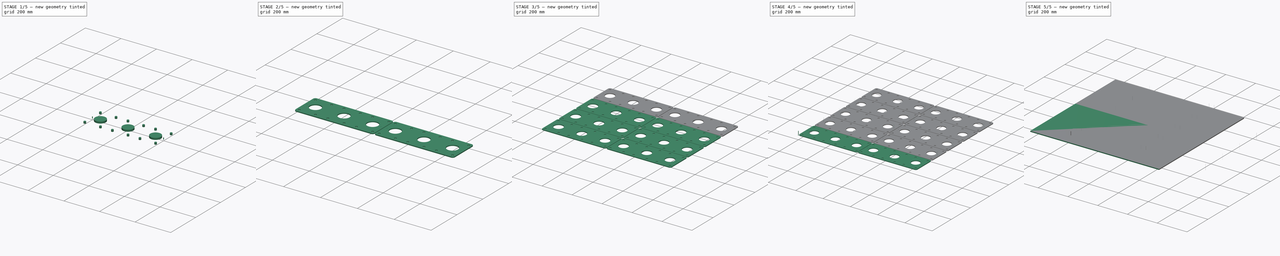
[diagram: build sequence overview — one tinted view per stage of 5, left to right]
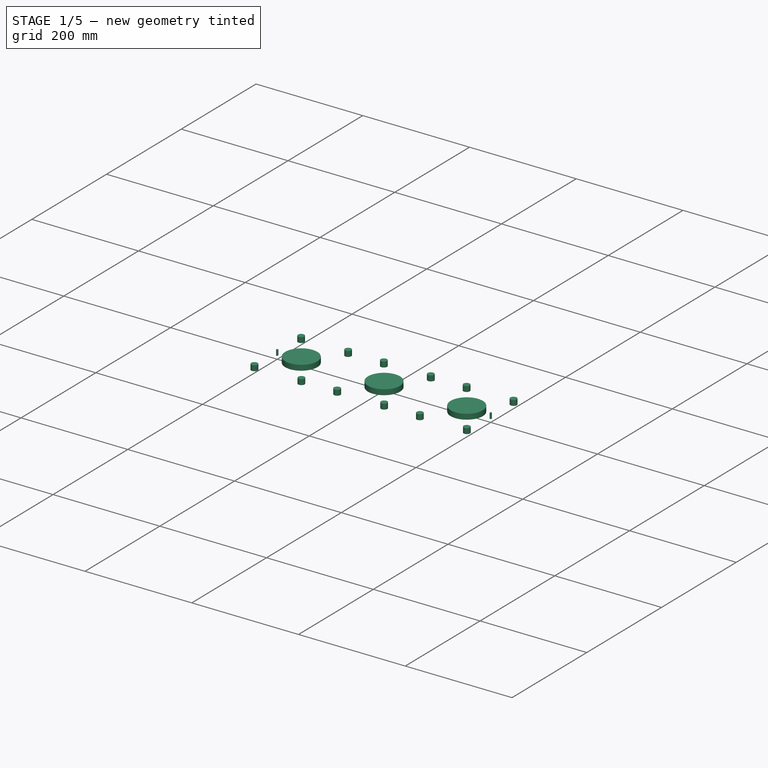
[diagram: stage 1 of 5 — iso view after this stage's code; geometry added in this stage tinted green]
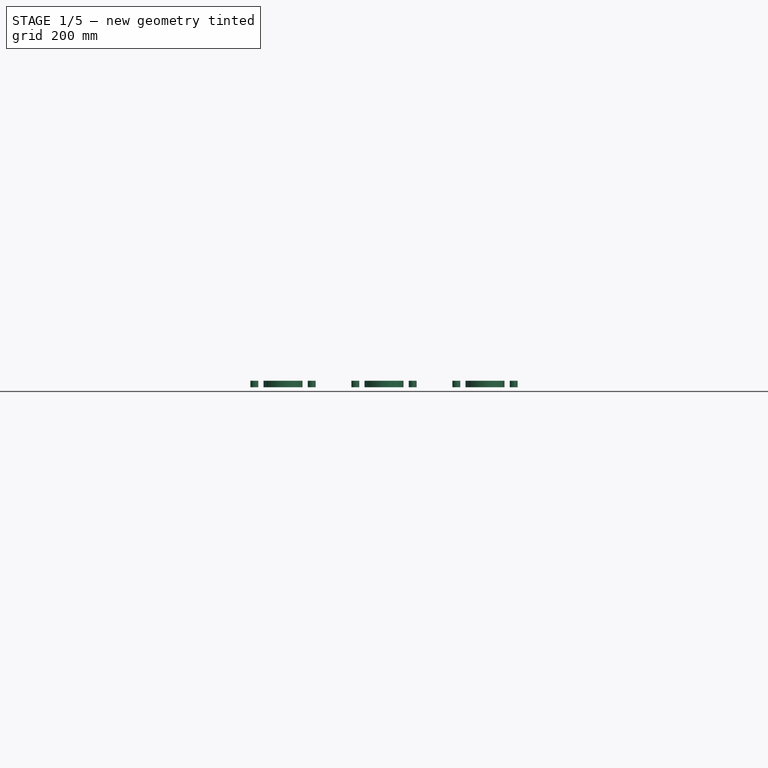
[diagram: stage 1 of 5 — front view after this stage's code; geometry added in this stage tinted green]
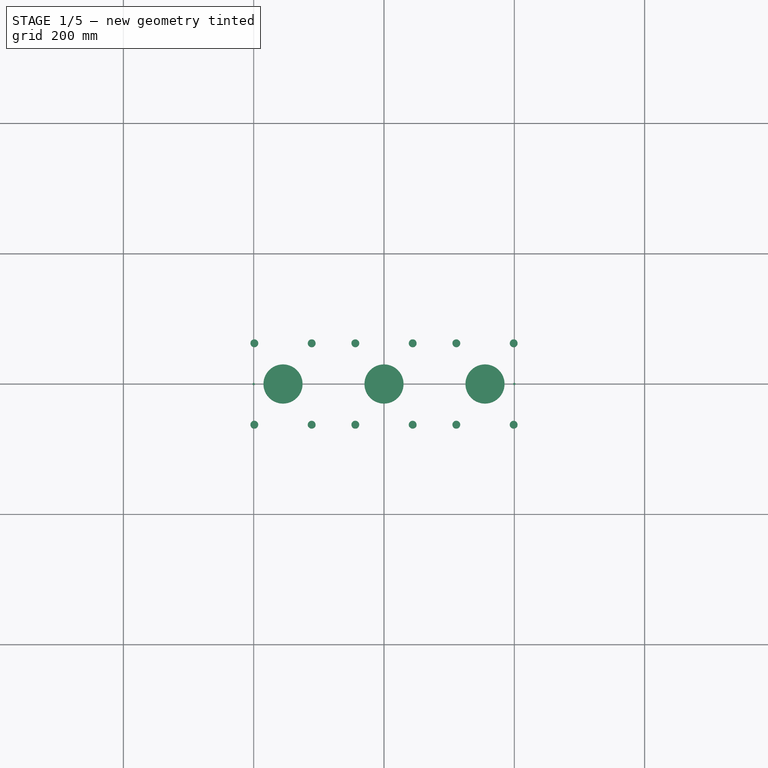
[diagram: stage 1 of 5 — top view after this stage's code; geometry added in this stage tinted green]
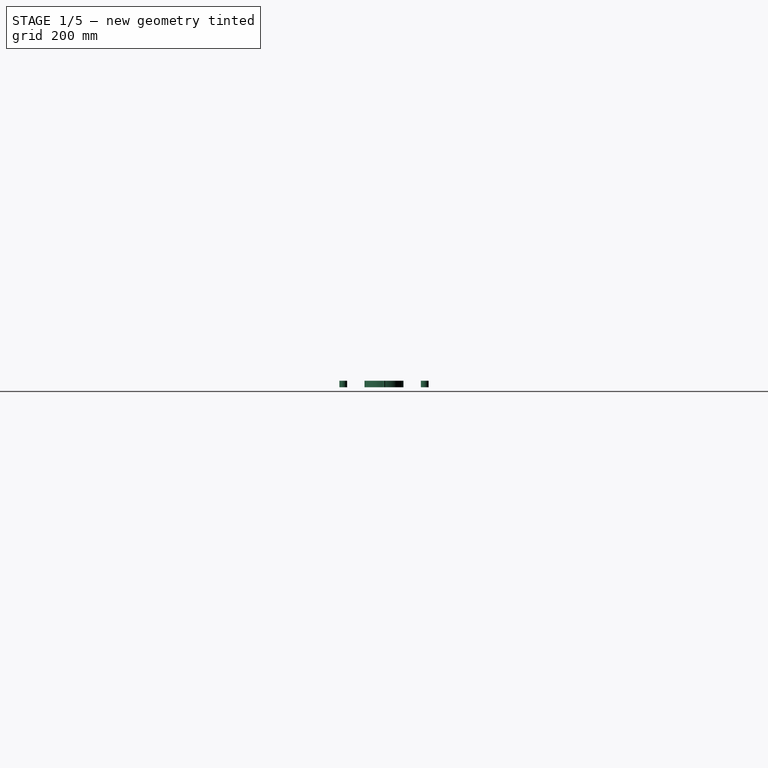
[diagram: stage 1 of 5 — right view after this stage's code; geometry added in this stage tinted green]
FCSTD DOCUMENT  (FreeCAD 0.22R37100 (Git))
Label: stillage_compressor
License: All rights reserved
LicenseURL: http://en.wikipedia.org/wiki/All_rights_reserved
objects: Part::FeaturePython×42, Path::FeaturePython×12, App::DocumentObjectGroup×10, Part::Cylinder×4, App::FeaturePython×3, Part::MultiFuse×2, Measure::MeasureLength×2, Path::FeatureCompound×2, Part::Part2DObjectPython×1, Sketcher::SketchObject×1, PartDesign::SubShapeBinder×1, PartDesign::Pad×1, PartDesign::Boolean×1, PartDesign::Body×1, Measure::MeasureDistance×1
note: 57 computed .brp shape members not serialized (recipe doc carries the construction recipe); baked Part::Feature solids carry a one-line shape summary decoded from their .brp

FEATURE [Part::Cylinder] Cylinder
  Angle = 360
  AttacherType = Attacher::AttachEngine3D
  FirstAngle = 0
  Height = 10
  Radius = 30
  SecondAngle = 0
FEATURE [Part::FeaturePython] LinearArray  # WARN: FeaturePython — macro-defined, semantics opaque (R4)
  Alignment = 0
  CellStart = A1
  Count = 3
  Dir = (1,0,0)
  DirIsDriven = true
  DistributionLaw = 0
  DrivenProperty = 1
  EndInclusive = true
  ExposePlacement = false
  GeneratorMode = 0
  MarkerShape = 1
  MarkerSize = 0
  NumElements = 3
  OrientMode = 1
  Placement = pos=(-155,0,0) rot=(0,0,1;0rad)
  Point = (0,0,0)
  PointIsDriven = true
  Reverse = false
  SpanEnd = 310
  SpanStart = 0
  Step = 155
  Type = lattice2LinearArray.LinearArray
  VSGVersion = 1
  Values = 0.0 | 155.0 | 310.0
  ValuesSource = 2
  isLattice = 1
  expr: .Placement.Base.x = -SpanEnd / 2
FEATURE [Part::FeaturePython] Populate  label="Populate LinearArray with Cylinder"  # WARN: FeaturePython — macro-defined, semantics opaque (R4)
  Copying = 0
  ExposePlacement = false
  MarkerShape = 1
  MarkerSize = 0
  NumElements = 0
  Object = -> Cylinder
  OutputCompounding = 1
  PlacementsTo = -> LinearArray
  Referencing = 0
  Type = lattice2PopulateCopies.LatticePopulateCopies
  isLattice = 0
FEATURE [Part::FeaturePython] Placment  # WARN: FeaturePython — macro-defined, semantics opaque (R4)
  AttacherType = Attacher::AttachEngine3D
  ExposePlacement = true
  MarkerShape = 1
  MarkerSize = 20
  NumElements = 1
  Placement = pos=(44,62.5,0) rot=(0,0,1;0rad)
  Type = lattice2AttachablePlacement.AttachablePlacement
  isLattice = 1
FEATURE [Part::FeaturePython] Mirror  label="Mirror of Placment"  # WARN: FeaturePython — macro-defined, semantics opaque (R4)
  ExposePlacement = false
  FlipX = true
  FlipY = false
  FlipZ = false
  MarkerShape = 1
  MarkerSize = 20
  NumElements = 1
  Object = -> Placment
  ObjectTraversal = 0
  Type = lattice2Mirror.LatticeMirror
  isLattice = 1
FEATURE [Part::FeaturePython] Join  # WARN: FeaturePython — macro-defined, semantics opaque (R4)
  ExposePlacement = false
  Interleave = false
  Links = -> [Placment,Mirror]
  MarkerShape = 1
  MarkerSize = 0
  NumElements = 2
  Type = lattice2JoinArrays.JoinArrays
  isLattice = 1
FEATURE [Part::FeaturePython] Mirror001  label="Mirror001 of Join"  # WARN: FeaturePython — macro-defined, semantics opaque (R4)
  ExposePlacement = false
  FlipX = false
  FlipY = true
  FlipZ = false
  MarkerShape = 1
  MarkerSize = 0
  NumElements = 2
  Object = -> Join
  ObjectTraversal = 0
  Type = lattice2Mirror.LatticeMirror
  isLattice = 1
FEATURE [Part::FeaturePython] Join001  # WARN: FeaturePython — macro-defined, semantics opaque (R4)
  ExposePlacement = false
  Interleave = false
  Links = -> [Join,Mirror001]
  MarkerShape = 1
  MarkerSize = 0
  NumElements = 4
  Type = lattice2JoinArrays.JoinArrays
  isLattice = 1
FEATURE [Part::Cylinder] Cylinder001
  Angle = 360
  AttacherType = Attacher::AttachEngine3D
  FirstAngle = 0
  Height = 10
  Radius = 6
  SecondAngle = 0
FEATURE [Part::FeaturePython] Populate001  label="Populate LinearArray with Join001"  # WARN: FeaturePython — macro-defined, semantics opaque (R4)
  Copying = 0
  ExposePlacement = false
  MarkerShape = 1
  MarkerSize = 0
  NumElements = 12
  Object = -> Join001
  OutputCompounding = 0
  PlacementsTo = -> LinearArray
  Referencing = 0
  Type = lattice2PopulateCopies.LatticePopulateCopies
  isLattice = 1
FEATURE [Part::FeaturePython] Populate002  label="Populate Populate LinearArray with Join001 with Cylinder001"  # WARN: FeaturePython — macro-defined, semantics opaque (R4)
  Copying = 0
  ExposePlacement = false
  MarkerShape = 1
  MarkerSize = 0
  NumElements = 0
  Object = -> Cylinder001
  OutputCompounding = 1
  PlacementsTo = -> Populate001
  Referencing = 0
  Type = lattice2PopulateCopies.LatticePopulateCopies
  isLattice = 0
FEATURE [Part::Cylinder] Cylinder002
  Angle = 360
  AttacherType = Attacher::AttachEngine3D
  FirstAngle = 0
  Height = 10
  Radius = 1.7
  SecondAngle = 0
FEATURE [Part::FeaturePython] Placment001  # WARN: FeaturePython — macro-defined, semantics opaque (R4)
  AttacherType = Attacher::AttachEngine3D
  ExposePlacement = true
  MarkerShape = 1
  MarkerSize = 20
  NumElements = 1
  Placement = pos=(200,0,0) rot=(0,0,1;0rad)
  Type = lattice2AttachablePlacement.AttachablePlacement
  isLattice = 1
FEATURE [Part::FeaturePython] Mirror002  label="Mirror002 of Placment001"  # WARN: FeaturePython — macro-defined, semantics opaque (R4)
  ExposePlacement = false
  FlipX = true
  FlipY = false
  FlipZ = false
  MarkerShape = 1
  MarkerSize = 20
  NumElements = 1
  Object = -> Placment001
  ObjectTraversal = 0
  Type = lattice2Mirror.LatticeMirror
  isLattice = 1
FEATURE [Part::FeaturePython] Join002  label="fix_placements"  # WARN: FeaturePython — macro-defined, semantics opaque (R4)
  ExposePlacement = false
  Interleave = false
  Links = -> [Placment001,Mirror002]
  MarkerShape = 1
  MarkerSize = 0
  NumElements = 2
  Type = lattice2JoinArrays.JoinArrays
  isLattice = 1
FEATURE [Part::FeaturePython] Populate003  label="Populate fix_placements with Cylinder002"  # WARN: FeaturePython — macro-defined, semantics opaque (R4)
  Copying = 0
  ExposePlacement = false
  MarkerShape = 1
  MarkerSize = 0
  NumElements = 0
  Object = -> Cylinder002
  OutputCompounding = 1
  PlacementsTo = -> Join002
  Referencing = 0
  Type = lattice2PopulateCopies.LatticePopulateCopies
  isLattice = 0
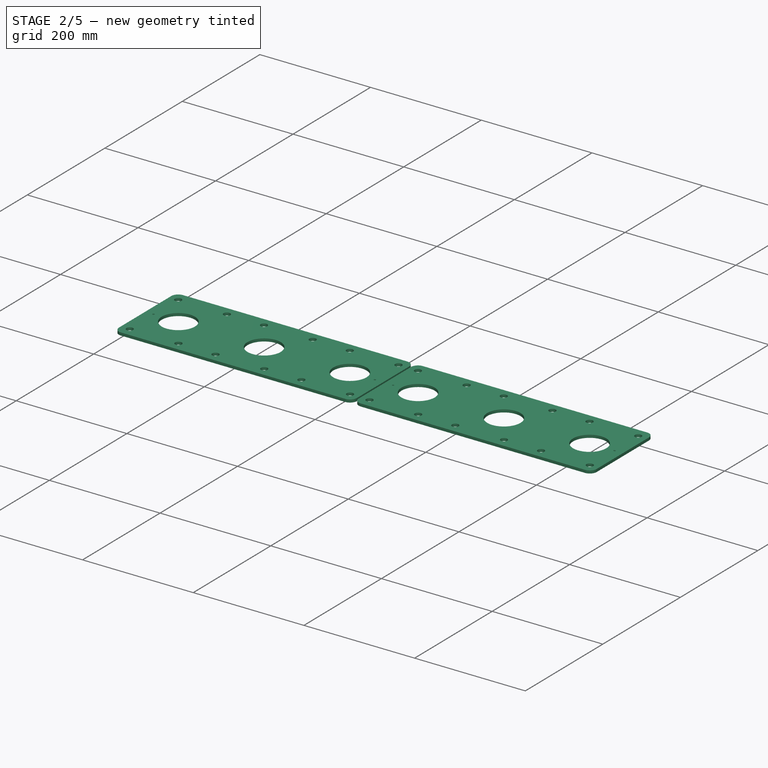
[diagram: stage 2 of 5 — iso view after this stage's code; geometry added in this stage tinted green]
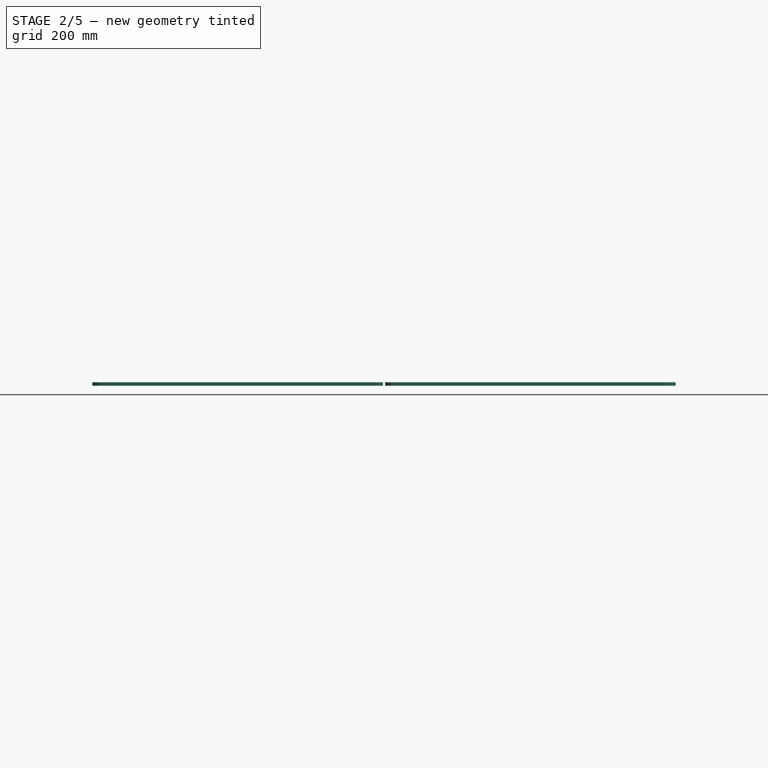
[diagram: stage 2 of 5 — front view after this stage's code; geometry added in this stage tinted green]
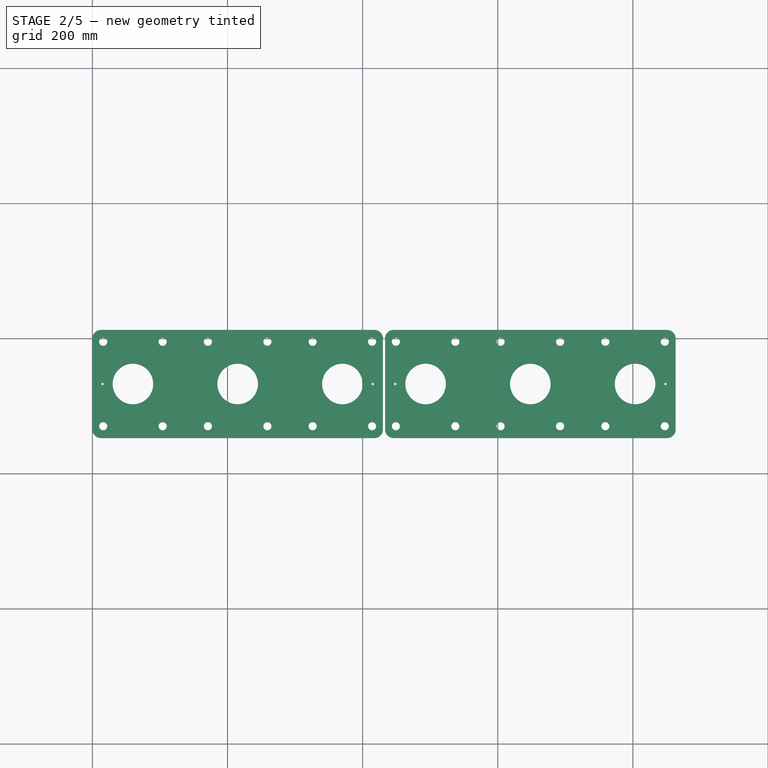
[diagram: stage 2 of 5 — top view after this stage's code; geometry added in this stage tinted green]
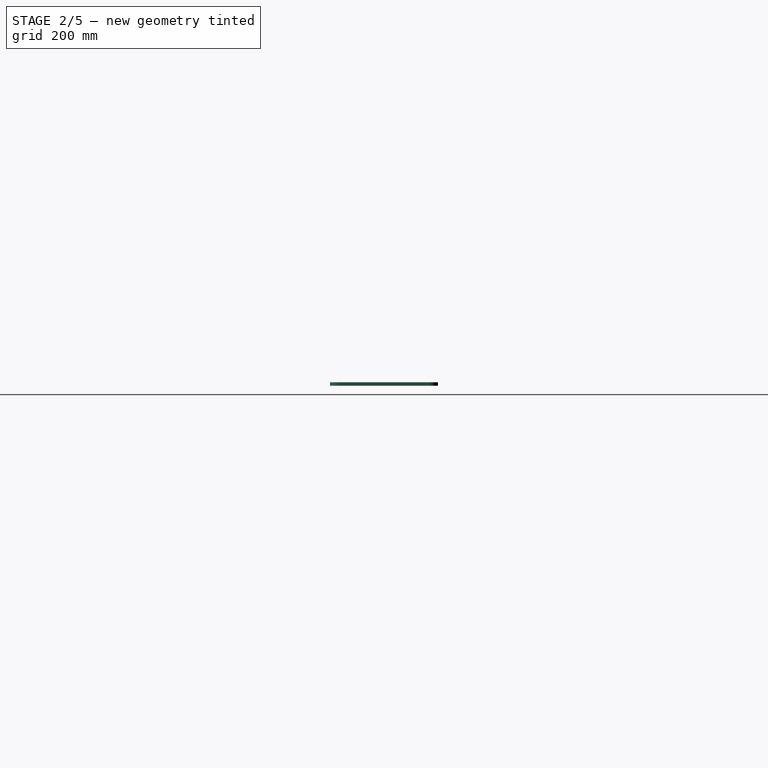
[diagram: stage 2 of 5 — right view after this stage's code; geometry added in this stage tinted green]
FEATURE [Part::Part2DObjectPython] Rectangle  # Draft 2D object (typed FeaturePython)
  Area = 0
  ChamferSize = 0
  Columns = 1
  FilletRadius = 0
  Height = 900
  Length = 870
  MakeFace = false
  Rows = 1
FEATURE [Sketcher::SketchObject] Sketch002
  FullyConstrained = true
  sketch-geometry (10):
    g0: LineSegment StartX=-202.5 StartY=-80 StartZ=0 EndX=202.5 EndY=-80 EndZ=0
    g1: LineSegment StartX=215 StartY=-67.5 StartZ=0 EndX=215 EndY=67.5 EndZ=0
    g2: LineSegment StartX=202.5 StartY=80 StartZ=0 EndX=-202.5 EndY=80 EndZ=0
    g3: LineSegment StartX=-215 StartY=67.5 StartZ=0 EndX=-215 EndY=-67.5 EndZ=0
    g4: ArcOfCircle CenterX=-202.5 CenterY=-67.5 CenterZ=0 NormalX=0 NormalY=0 NormalZ=1 AngleXU=0 Radius=12.5 StartAngle=3.14159 EndAngle=4.71239
    g5: ArcOfCircle CenterX=202.5 CenterY=-67.5 CenterZ=0 NormalX=0 NormalY=0 NormalZ=1 AngleXU=0 Radius=12.5 StartAngle=4.71239 EndAngle=6.28319
    g6: ArcOfCircle CenterX=202.5 CenterY=67.5 CenterZ=0 NormalX=0 NormalY=0 NormalZ=1 AngleXU=0 Radius=12.5 StartAngle=-1.3367e-12 EndAngle=1.5708
    g7: ArcOfCircle CenterX=-202.5 CenterY=67.5 CenterZ=0 NormalX=0 NormalY=0 NormalZ=1 AngleXU=0 Radius=12.5 StartAngle=1.5708 EndAngle=3.14159
    g8: GeomPoint X=-215 Y=-80 Z=0
    g9: GeomPoint X=215 Y=80 Z=0
  constraints (23):
    c: Tangent(g0,g4) = -1.5708
    c: Tangent(g0,g5) = -1.5708
    c: Tangent(g1,g5) = -1.5708
    c: Tangent(g1,g6) = -1.5708
    c: Tangent(g2,g6) = -1.5708
    c: Tangent(g2,g7) = -1.5708
    c: Tangent(g3,g7) = -1.5708
    c: Tangent(g3,g4) = -1.5708
    c: Horizontal(g0)
    c: Horizontal(g2)
    c: Vertical(g1)
    c: Vertical(g3)
    c: Equal(g4,g5)
    c: Equal(g5,g6)
    c: Equal(g6,g7)
    c: PointOnObject(g8,g0)
    c: PointOnObject(g8,g3)
    c: PointOnObject(g9,g1)
    c: PointOnObject(g9,g2)
    c: Symmetric(g8,g9,g-1)
    c: DistanceX(g8,g9) = 430
    c: DistanceY(g8,g9) = 160
    c: Radius(g6) = 12.5
FEATURE [PartDesign::SubShapeBinder] Binder
  BindCopyOnChange = 0
  BindMode = 0
  ClaimChildren = false
  Context = -> Body001 [Binder.]
  Fuse = false
  MakeFace = true
  OffsetFill = false
  OffsetIntersection = false
  OffsetJoinType = 0
  OffsetOpenResult = false
  PartialLoad = false
  Relative = false
  Support = -> [Sketch002]
  _Version = 2
FEATURE [PartDesign::Pad] Pad001
  Direction = (0,0,1)
  Length = 5
  Length2 = 10
  Profile = -> Binder
  Suppressed = false
  Type = 0
FEATURE [Part::MultiFuse] Fusion
  Shapes = -> [Populate,Populate002,Populate003]
FEATURE [PartDesign::Boolean] Boolean
  BaseFeature = -> Pad001
  Group = -> [Fusion]
  Refine = true
  Suppressed = false
  Type = 1
  UsePlacement = true
FEATURE [Part::FeaturePython] Clone008  label="Model-Body009"  # Draft clone (typed FeaturePython)
  AttacherType = Attacher::AttachEngine3D
  Fuse = false
  Objects = -> [Body001]
  PathResource = Model
  Placement = pos=(215,732.8,0) rot=(0,0,1;3.14159rad)
  Scale = (1,1,1)
FEATURE [Part::FeaturePython] Clone009  label="Model-Body010"  # Draft clone (typed FeaturePython)
  AttacherType = Attacher::AttachEngine3D
  Fuse = false
  Objects = -> [Body001]
  PathResource = Model
  Placement = pos=(648.2,732.8,0) rot=(0,0,1;0rad)
  Scale = (1,1,1)
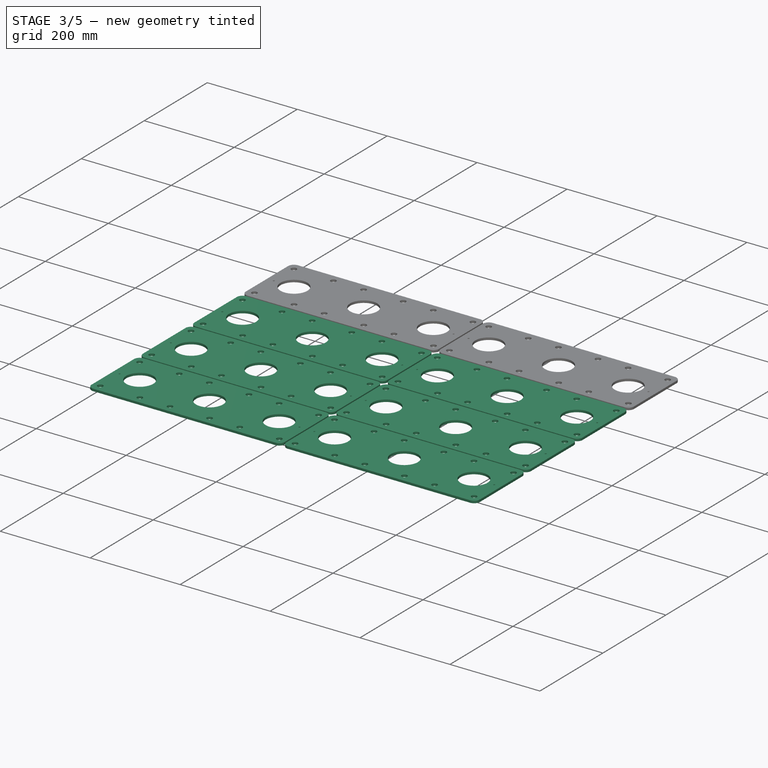
[diagram: stage 3 of 5 — iso view after this stage's code; geometry added in this stage tinted green]
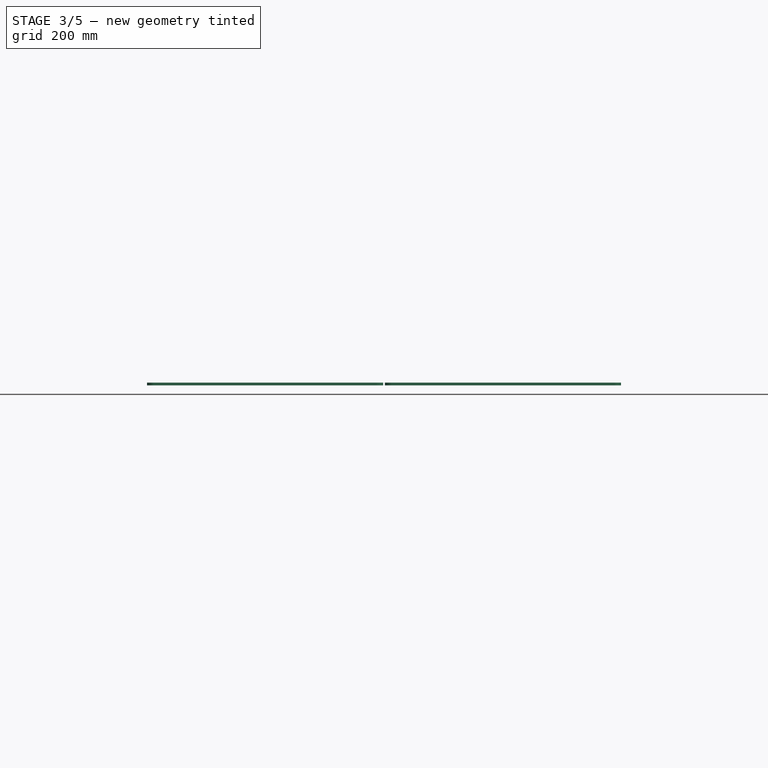
[diagram: stage 3 of 5 — front view after this stage's code; geometry added in this stage tinted green]
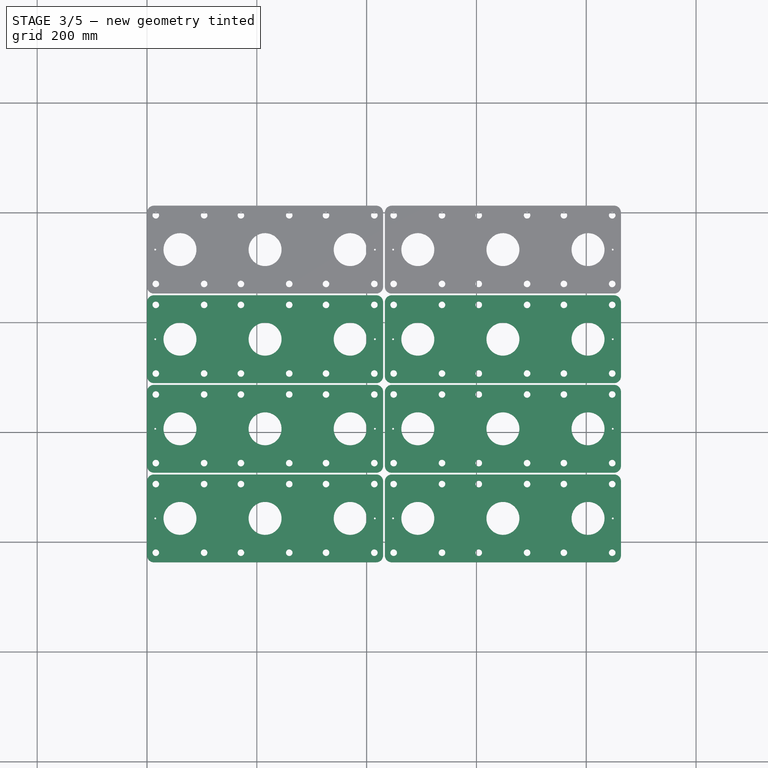
[diagram: stage 3 of 5 — top view after this stage's code; geometry added in this stage tinted green]
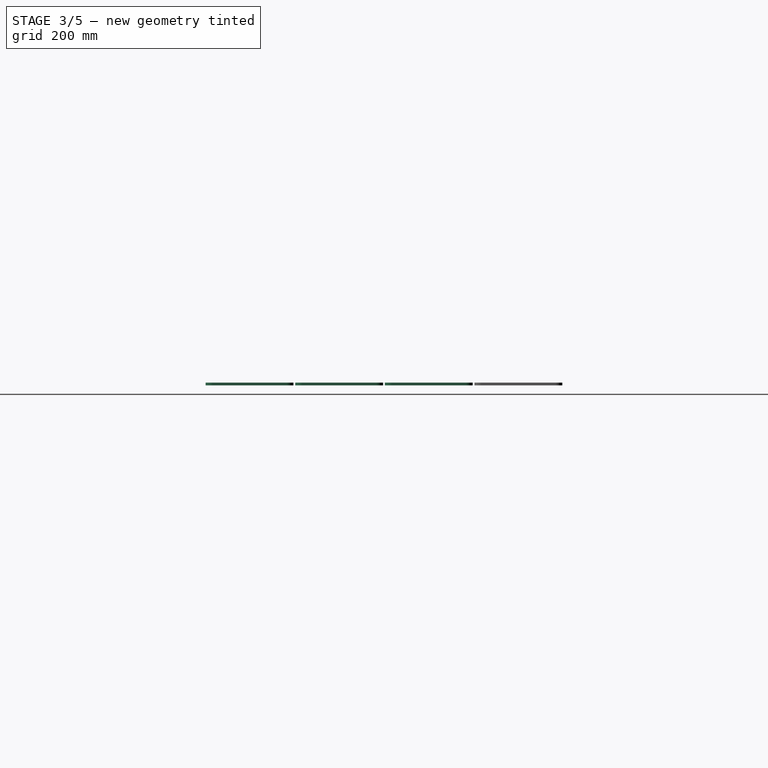
[diagram: stage 3 of 5 — right view after this stage's code; geometry added in this stage tinted green]
FEATURE [Part::FeaturePython] Clone002  label="Model-Body003"  # Draft clone (typed FeaturePython)
  AttacherType = Attacher::AttachEngine3D
  Fuse = false
  Objects = -> [Body001]
  PathResource = Model
  Placement = pos=(215,243.2,0) rot=(0,0,1;3.14159rad)
  Scale = (1,1,1)
FEATURE [Path::FeaturePython] Custom  # Path/CAM operation (typed FeaturePython)
  Active = true
  CoolantMode = 0
  CycleTime = Cycletime Error
  OpStockZMax = 6
  OpStockZMin = 0
  OpToolDiameter = 3.175
  Source = 0
  StartDepth = 6
  ToolController = -> __175mm_Endmill001
FEATURE [Path::FeaturePython] Custom001  # Path/CAM operation (typed FeaturePython)
  Active = true
  CoolantMode = 0
  CycleTime = Cycletime Error
  OpStockZMax = 6
  OpStockZMin = 0
  OpToolDiameter = 3.175
  Source = 0
  StartDepth = 6
  ToolController = -> __175mm_Endmill001
FEATURE [Part::FeaturePython] Clone003  label="Model-Body004"  # Draft clone (typed FeaturePython)
  AttacherType = Attacher::AttachEngine3D
  Fuse = false
  Objects = -> [Body001]
  PathResource = Model
  Placement = pos=(648.2,243.2,0) rot=(0,0,1;0rad)
  Scale = (1,1,1)
FEATURE [Measure::MeasureLength] Length
  Elements = -> [Rectangle]
  Length = 900
FEATURE [Measure::MeasureLength] Length001
  Elements = -> [Rectangle]
  Length = 870
FEATURE [Part::FeaturePython] Placment005  # WARN: FeaturePython — macro-defined, semantics opaque (R4)
  AttacherType = Attacher::AttachEngine3D
  AttachmentSupport = -> [Clone003]
  ExposePlacement = true
  MapMode = 2
  MarkerShape = 1
  MarkerSize = 20
  NumElements = 1
  Placement = pos=(648.2,243.2,0) rot=(0,0,1;0rad)
  Type = lattice2AttachablePlacement.AttachablePlacement
  isLattice = 1
FEATURE [Measure::MeasureDistance] Distance
  Distance = 160
  Element1 = -> Clone001 [Edge37]
  Element2 = -> Clone001 [Edge4]
  Position1 = (445.7,-8.53e-14,5)
  Position2 = (445.7,160,5)
FEATURE [App::DocumentObjectGroup] Measurements
  Group = -> [Length,Length001,Distance]
FEATURE [Part::FeaturePython] Clone004  label="Model-Body005"  # Draft clone (typed FeaturePython)
  AttacherType = Attacher::AttachEngine3D
  Fuse = false
  Objects = -> [Body001]
  PathResource = Model
  Placement = pos=(215,406.4,0) rot=(0,0,1;3.14159rad)
  Scale = (1,1,1)
FEATURE [Part::FeaturePython] Clone005  label="Model-Body006"  # Draft clone (typed FeaturePython)
  AttacherType = Attacher::AttachEngine3D
  Fuse = false
  Objects = -> [Body001]
  PathResource = Model
  Placement = pos=(648.2,406.4,0) rot=(0,0,1;0rad)
  Scale = (1,1,1)
FEATURE [Part::FeaturePython] Clone006  label="Model-Body007"  # Draft clone (typed FeaturePython)
  AttacherType = Attacher::AttachEngine3D
  Fuse = false
  Objects = -> [Body001]
  PathResource = Model
  Placement = pos=(215,569.6,0) rot=(0,0,1;3.14159rad)
  Scale = (1,1,1)
FEATURE [Part::FeaturePython] Clone007  label="Model-Body008"  # Draft clone (typed FeaturePython)
  AttacherType = Attacher::AttachEngine3D
  Fuse = false
  Objects = -> [Body001]
  PathResource = Model
  Placement = pos=(648.2,569.6,0) rot=(0,0,1;0rad)
  Scale = (1,1,1)
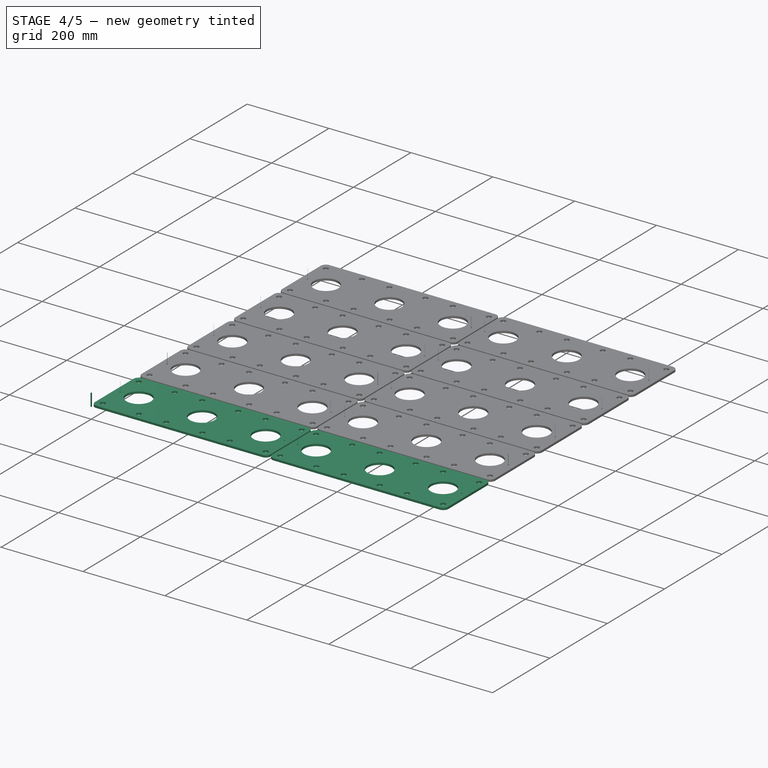
[diagram: stage 4 of 5 — iso view after this stage's code; geometry added in this stage tinted green]
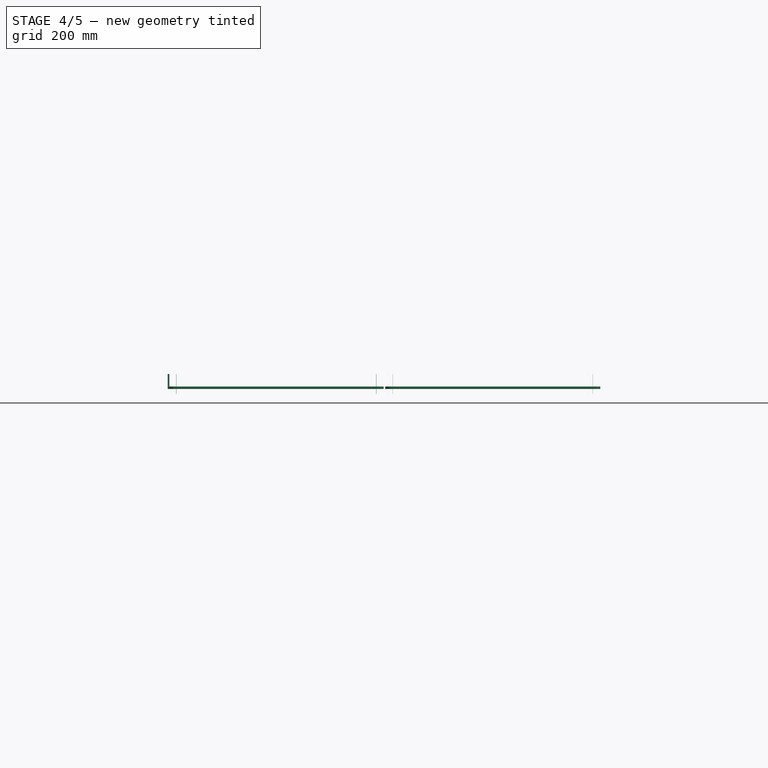
[diagram: stage 4 of 5 — front view after this stage's code; geometry added in this stage tinted green]
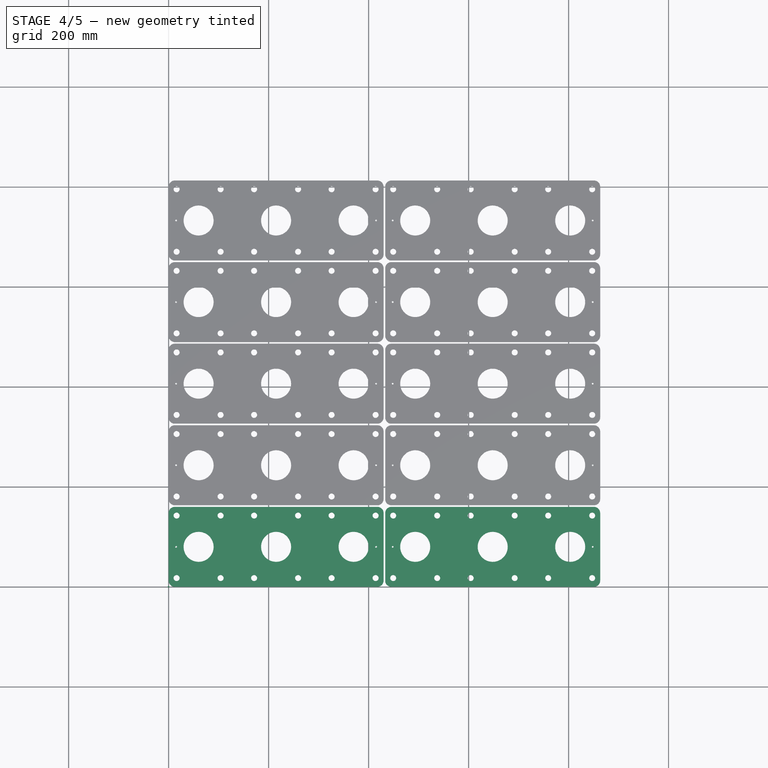
[diagram: stage 4 of 5 — top view after this stage's code; geometry added in this stage tinted green]
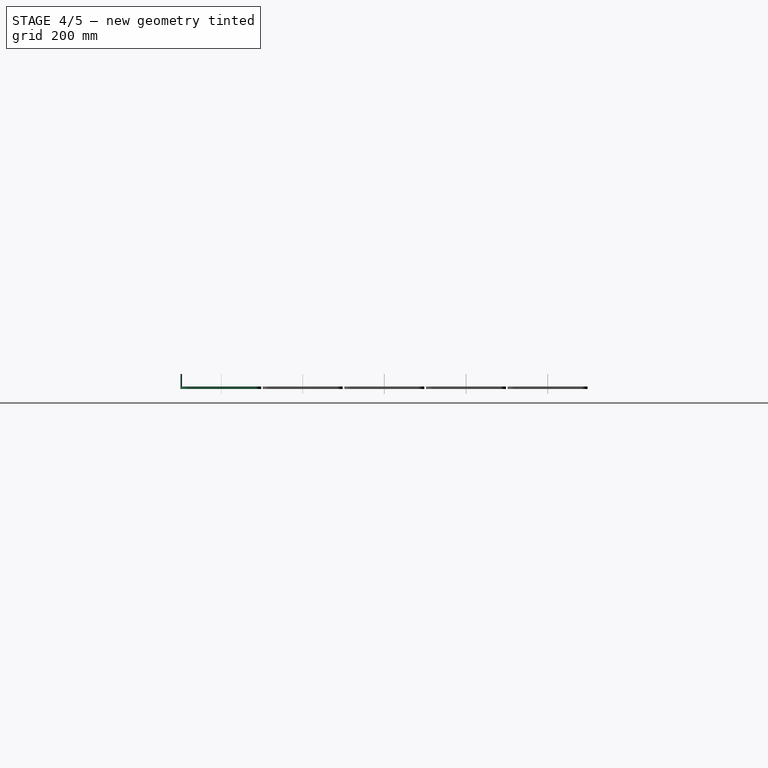
[diagram: stage 4 of 5 — right view after this stage's code; geometry added in this stage tinted green]
FEATURE [PartDesign::Body] Body001
  Group = -> [Binder,Pad001,Boolean]
  Origin = -> Origin001
  Tip = -> Boolean
FEATURE [App::FeaturePython] SetupSheet  # Path/CAM operation (typed FeaturePython)
  ClearanceHeightExpression = OpStockZMax+SetupSheet.ClearanceHeightOffset
  ClearanceHeightOffset = 15
  CoolantMode = 0
  CoolantModes = None | Flood | Mist
  FinalDepthExpression = OpFinalDepth
  HorizRapid = 0
  ProfileDirection = 1
  ProfileprocessCircles = true
  ProfileprocessHoles = true
  ProfileprocessPerimeter = true
  SafeHeightExpression = OpStockZMax+SetupSheet.SafeHeightOffset
  SafeHeightOffset = 3
  StartDepthExpression = OpStartDepth
  StepDownExpression = OpToolDiameter
  VertRapid = 0
FEATURE [Part::FeaturePython] Clone  label="Model-Body001"  # Draft clone (typed FeaturePython)
  AttacherType = Attacher::AttachEngine3D
  Fuse = false
  Objects = -> [Body001]
  PathResource = Model
  Placement = pos=(215,80,0) rot=(0,0,1;3.14159rad)
  Scale = (1,1,1)
FEATURE [Part::FeaturePython] ToolBit  label="3.175mm Endmill"  # Path/CAM toolbit (typed FeaturePython)
  BitPropertyNames = Chipload | CuttingEdgeHeight | Diameter | Flutes | Length | Material | ShankDiameter | SpindleDirection
  BitShape = <path>
  Chipload = 0
  CuttingEdgeHeight = 30
  Diameter = 3.175
  Flutes = 0
  Length = 10
  Material = 0
  ShankDiameter = 3
  ShapeName = endmill
  SpindleDirection = 0
FEATURE [Path::FeaturePython] __175mm_Endmill  label="3.175mm Endmill001"  # Path/CAM operation (typed FeaturePython)
  HorizFeed = 51.6667
  HorizRapid = 0
  SpindleDir = 0
  SpindleSpeed = 18000
  Tool = -> ToolBit
  ToolNumber = 1
  VertFeed = 35
  VertRapid = 0
  expr: HorizRapid = SetupSheet.HorizRapid
  expr: VertRapid = SetupSheet.VertRapid
FEATURE [App::DocumentObjectGroup] Tools
  Group = -> [__175mm_Endmill]
FEATURE [Part::Cylinder] Cylinder003
  Angle = 360
  AttacherType = Attacher::AttachEngine3D
  FirstAngle = 0
  Height = 40
  Placement = pos=(0,0,-10) rot=(0,0,1;0rad)
  Radius = 0.2
  SecondAngle = 0
FEATURE [Part::FeaturePython] Clone001  label="Model-Body002"  # Draft clone (typed FeaturePython)
  AttacherType = Attacher::AttachEngine3D
  Fuse = false
  Objects = -> [Body001]
  PathResource = Model
  Placement = pos=(648.2,80,0) rot=(0,0,1;3.14159rad)
  Scale = (1,1,1)
FEATURE [Path::FeaturePython] Profile  # Path/CAM operation (typed FeaturePython)
  Active = true
  AreaParams:
    Tolerance = 1e-07
    FitArcs = True
    Simplify = False
    CleanDistance = 0.0
    Accuracy = 0.01
    Unit = 1.0
    MinArcPoints = 4
    MaxArcPoints = 100
    ClipperScale = 10000000.0
    Fill = 0
    Coplanar = 0
    Reorient = True
    Outline = False
    Explode = False
    OpenMode = 0
    Deflection = 0.01
    SubjectFill = 0
    ClipFill = 0
    Offset = -1.5875
    ExtraPass = 0
    Stepover = 0.0
    LastStepover = 0.0
    JoinType = 0
    EndType = 0
    MiterLimit = 2.0
    RoundPrecision = 0.0
    PocketMode = 0
    ToolRadius = 1.0
    PocketExtraOffset = 0.0
    PocketStepover = 0.0
    PocketLastStepover = 0.0
    FromCenter = False
    Angle = 45.0
    AngleShift = 0.0
    Shift = 0.0
    Thicken = False
    SectionCount = -1
    Stepdown = 1.0
    SectionOffset = 0.0
    SectionTolerance = 1e-06
    SectionMode = 2
    Project = False
  Base = -> [Clone,Clone001,Clone002,Clone003,Clone004,Clone005,Clone006,Clone007,Clone008,Clone009]
  ClearanceHeight = 21
  CoolantMode = 0
  CycleTime = 00:08:03
  Direction = 1
  FinalDepth = 0
  HandleMultipleFeatures = 0
  JoinType = 0
  MiterLimit = 0.1
  OffsetExtra = 0
  OpFinalDepth = 0
  OpStartDepth = 6
  OpStockZMax = 6
  OpStockZMin = 0
  OpToolDiameter = 3.175
  PathParams = {'orientation': 1, 'feedrate': 51.666666666666664, 'feedrate_v': 35.0, 'verbose': True, 'resume_height': 9.0, 'retraction': 21.0, 'return_end': True, 'preamble': False, 'start': Vector (452.8938940543088, 792.8910097721513, 21.0)}
  SafeHeight = 9
  Side = 0
  SplitArcs = false
  StartDepth = 6
  StartPoint = (0,0,0)
  StepDown = 10
  ToolController = -> __175mm_Endmill
  UseComp = true
  UseStartPoint = false
  processCircles = true
  processHoles = true
  processPerimeter = false
  expr: ClearanceHeight = OpStockZMax + SetupSheet.ClearanceHeightOffset
  expr: FinalDepth = OpFinalDepth
  expr: SafeHeight = OpStockZMax + SetupSheet.SafeHeightOffset
  expr: StartDepth = OpStartDepth
FEATURE [Path::FeaturePython] Profile001  # Path/CAM operation (typed FeaturePython)
  Active = true
  AreaParams:
    Tolerance = 1e-07
    FitArcs = True
    Simplify = False
    CleanDistance = 0.0
    Accuracy = 0.01
    Unit = 1.0
    MinArcPoints = 4
    MaxArcPoints = 100
    ClipperScale = 10000000.0
    Fill = 0
    Coplanar = 0
    Reorient = True
    Outline = False
    Explode = False
    OpenMode = 0
    Deflection = 0.01
    SubjectFill = 0
    ClipFill = 0
    Offset = 1.5875
    ExtraPass = 0
    Stepover = 0.0
    LastStepover = 0.0
    JoinType = 0
    EndType = 0
    MiterLimit = 2.0
    RoundPrecision = 0.0
    PocketMode = 0
    ToolRadius = 1.0
    PocketExtraOffset = 0.0
    PocketStepover = 0.0
    PocketLastStepover = 0.0
    FromCenter = False
    Angle = 45.0
    AngleShift = 0.0
    Shift = 0.0
    Thicken = False
    SectionCount = -1
    Stepdown = 1.0
    SectionOffset = 0.0
    SectionTolerance = 1e-06
    SectionMode = 2
    Project = False
  Base = -> [Clone,Clone001,Clone002,Clone003,Clone004,Clone005,Clone006,Clone007,Clone008,Clone009]
  ClearanceHeight = 21
  CoolantMode = 0
  CycleTime = 00:04:20
  Direction = 1
  FinalDepth = 0
  HandleMultipleFeatures = 0
  JoinType = 0
  MiterLimit = 0.1
  OffsetExtra = 0
  OpFinalDepth = 0
  OpStartDepth = 6
  OpStockZMax = 6
  OpStockZMin = 0
  OpToolDiameter = 3.175
  PathParams = {'orientation': 0, 'feedrate': 51.666666666666664, 'feedrate_v': 35.0, 'verbose': True, 'resume_height': 9.0, 'retraction': 21.0, 'return_end': True, 'preamble': False, 'start': Vector (445.63767500000006, 324.7862760000001, 21.0)}
  SafeHeight = 9
  Side = 0
  SplitArcs = false
  StartDepth = 6
  StartPoint = (0,0,0)
  StepDown = 10
  ToolController = -> __175mm_Endmill
  UseComp = true
  UseStartPoint = false
  processCircles = false
  processHoles = false
  processPerimeter = true
  expr: Base = <<Profile>>.Base
  expr: ClearanceHeight = OpStockZMax + SetupSheet.ClearanceHeightOffset
  expr: FinalDepth = OpFinalDepth
  expr: SafeHeight = OpStockZMax + SetupSheet.SafeHeightOffset
  expr: StartDepth = OpStartDepth
FEATURE [Part::FeaturePython] Placment006  # WARN: FeaturePython — macro-defined, semantics opaque (R4)
  AttacherType = Attacher::AttachEngine3D
  AttachmentSupport = -> [Clone004]
  ExposePlacement = true
  MapMode = 2
  MarkerShape = 1
  MarkerSize = 20
  NumElements = 1
  Placement = pos=(215,406.4,0) rot=(0,0,1;3.14159rad)
  Type = lattice2AttachablePlacement.AttachablePlacement
  isLattice = 1
FEATURE [Part::FeaturePython] Placment007  # WARN: FeaturePython — macro-defined, semantics opaque (R4)
  AttacherType = Attacher::AttachEngine3D
  AttachmentSupport = -> [Clone005]
  ExposePlacement = true
  MapMode = 2
  MarkerShape = 1
  MarkerSize = 20
  NumElements = 1
  Placement = pos=(648.2,406.4,0) rot=(0,0,1;0rad)
  Type = lattice2AttachablePlacement.AttachablePlacement
  isLattice = 1
FEATURE [Part::FeaturePython] Placment008  # WARN: FeaturePython — macro-defined, semantics opaque (R4)
  AttacherType = Attacher::AttachEngine3D
  AttachmentSupport = -> [Clone006]
  ExposePlacement = true
  MapMode = 2
  MarkerShape = 1
  MarkerSize = 20
  NumElements = 1
  Placement = pos=(215,569.6,0) rot=(0,0,1;3.14159rad)
  Type = lattice2AttachablePlacement.AttachablePlacement
  isLattice = 1
FEATURE [Part::FeaturePython] Placment009  # WARN: FeaturePython — macro-defined, semantics opaque (R4)
  AttacherType = Attacher::AttachEngine3D
  AttachmentSupport = -> [Clone007]
  ExposePlacement = true
  MapMode = 2
  MarkerShape = 1
  MarkerSize = 20
  NumElements = 1
  Placement = pos=(648.2,569.6,0) rot=(0,0,1;0rad)
  Type = lattice2AttachablePlacement.AttachablePlacement
  isLattice = 1
FEATURE [Part::FeaturePython] Placment010  # WARN: FeaturePython — macro-defined, semantics opaque (R4)
  AttacherType = Attacher::AttachEngine3D
  AttachmentSupport = -> [Clone008]
  ExposePlacement = true
  MapMode = 2
  MarkerShape = 1
  MarkerSize = 20
  NumElements = 1
  Placement = pos=(215,732.8,0) rot=(0,0,1;3.14159rad)
  Type = lattice2AttachablePlacement.AttachablePlacement
  isLattice = 1
FEATURE [Part::FeaturePython] Placment011  # WARN: FeaturePython — macro-defined, semantics opaque (R4)
  AttacherType = Attacher::AttachEngine3D
  AttachmentSupport = -> [Clone009]
  ExposePlacement = true
  MapMode = 2
  MarkerShape = 1
  MarkerSize = 20
  NumElements = 1
  Placement = pos=(648.2,732.8,0) rot=(0,0,1;0rad)
  Type = lattice2AttachablePlacement.AttachablePlacement
  isLattice = 1
FEATURE [Part::FeaturePython] Join003  # WARN: FeaturePython — macro-defined, semantics opaque (R4)
  ExposePlacement = false
  Interleave = false
  Links = -> [Placment002,Placment003,Placment004,Placment005,Placment006,Placment007,Placment008,Placment009,Placment010,Placment011]
  MarkerShape = 1
  MarkerSize = 20
  NumElements = 10
  Type = lattice2JoinArrays.JoinArrays
  isLattice = 1
FEATURE [Part::FeaturePython] Populate004  label="Populate Join003 with fix_placements"  # WARN: FeaturePython — macro-defined, semantics opaque (R4)
  Copying = 0
  ExposePlacement = false
  MarkerShape = 1
  MarkerSize = 0
  NumElements = 20
  Object = -> Join002
  OutputCompounding = 0
  PlacementsTo = -> Join003
  Referencing = 0
  Type = lattice2PopulateCopies.LatticePopulateCopies
  isLattice = 1
FEATURE [Part::FeaturePython] Populate005  label="Populate Populate Join003 with fix_placements with Cylinder003"  # WARN: FeaturePython — macro-defined, semantics opaque (R4)
  Copying = 0
  ExposePlacement = false
  MarkerShape = 1
  MarkerSize = 0
  NumElements = 0
  Object = -> Cylinder003
  OutputCompounding = 1
  PlacementsTo = -> Populate004
  Referencing = 0
  Type = lattice2PopulateCopies.LatticePopulateCopies
  isLattice = 0
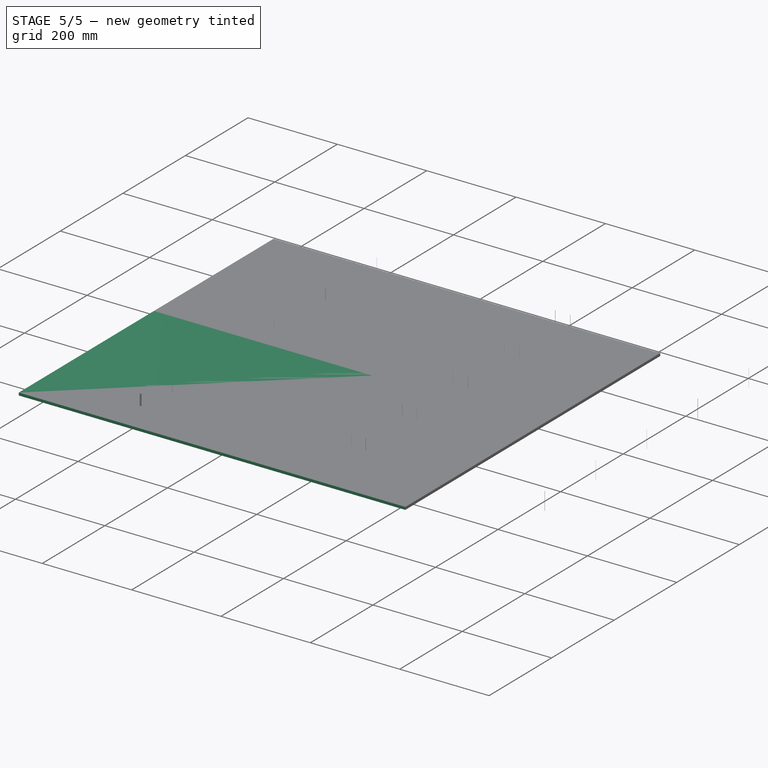
[diagram: stage 5 of 5 — iso view after this stage's code; geometry added in this stage tinted green]
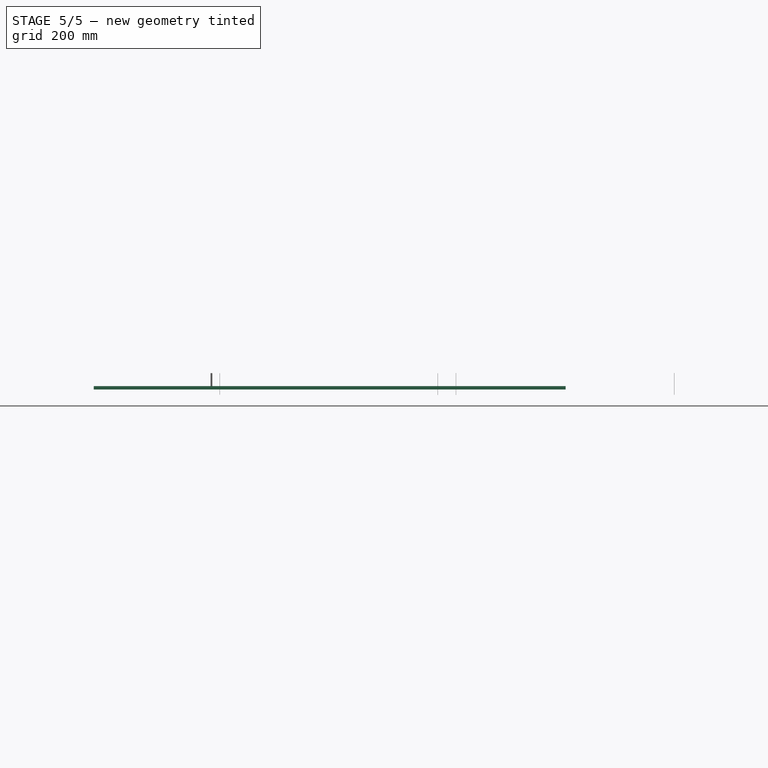
[diagram: stage 5 of 5 — front view after this stage's code; geometry added in this stage tinted green]
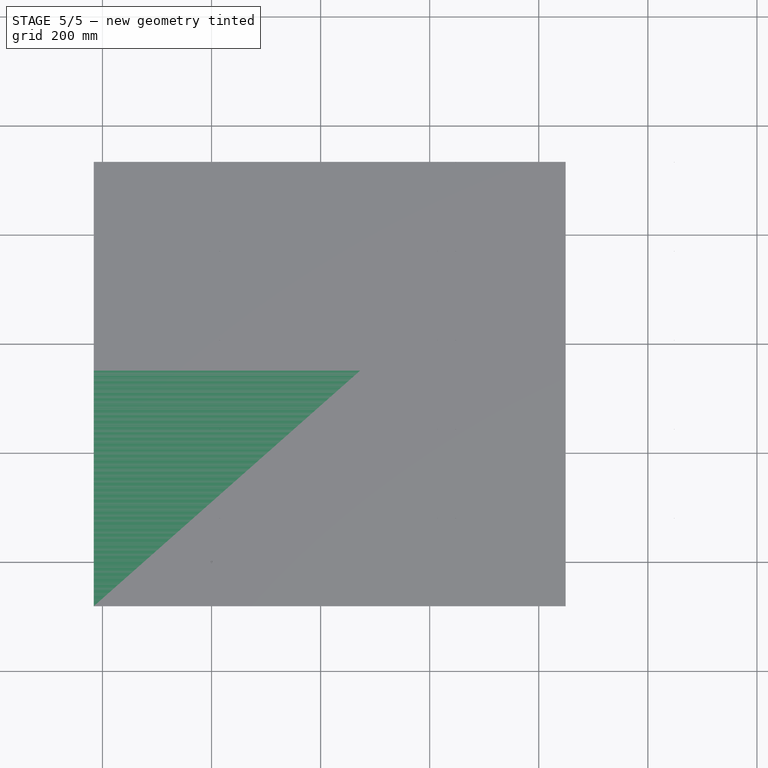
[diagram: stage 5 of 5 — top view after this stage's code; geometry added in this stage tinted green]
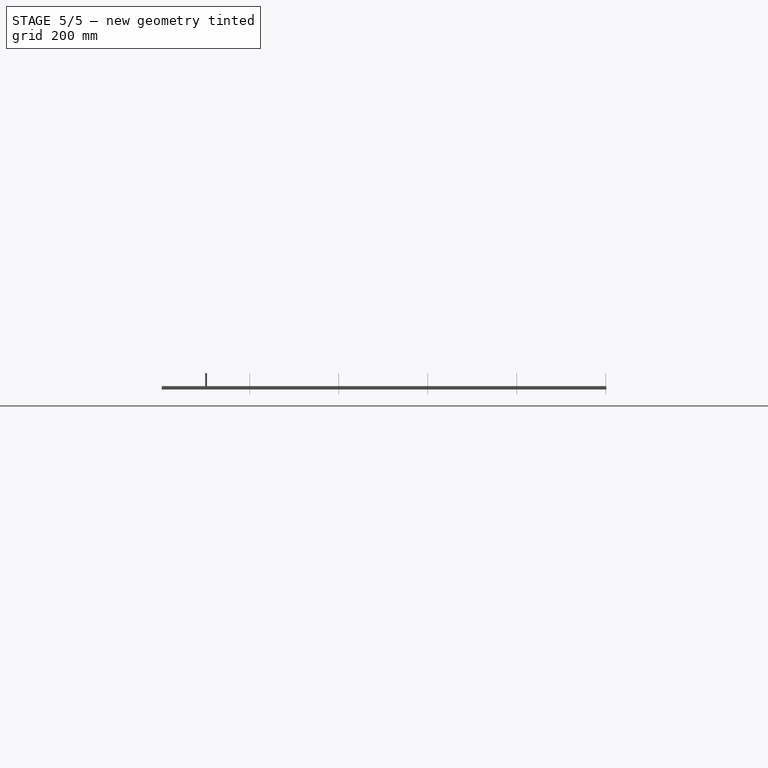
[diagram: stage 5 of 5 — right view after this stage's code; geometry added in this stage tinted green]
FEATURE [Part::FeaturePython] Placment002  # WARN: FeaturePython — macro-defined, semantics opaque (R4)
  AttacherType = Attacher::AttachEngine3D
  AttachmentSupport = -> [Clone]
  ExposePlacement = true
  MapMode = 2
  MarkerShape = 1
  MarkerSize = 20
  NumElements = 1
  Placement = pos=(215,80,0) rot=(0,0,1;3.14159rad)
  Type = lattice2AttachablePlacement.AttachablePlacement
  isLattice = 1
FEATURE [Part::FeaturePython] Placment003  # WARN: FeaturePython — macro-defined, semantics opaque (R4)
  AttacherType = Attacher::AttachEngine3D
  AttachmentSupport = -> [Clone001]
  ExposePlacement = true
  MapMode = 2
  MarkerShape = 1
  MarkerSize = 20
  NumElements = 1
  Placement = pos=(648.2,80,0) rot=(0,0,1;3.14159rad)
  Type = lattice2AttachablePlacement.AttachablePlacement
  isLattice = 1
FEATURE [Part::FeaturePython] Placment004  # WARN: FeaturePython — macro-defined, semantics opaque (R4)
  AttacherType = Attacher::AttachEngine3D
  AttachmentSupport = -> [Clone002]
  ExposePlacement = true
  MapMode = 2
  MarkerShape = 1
  MarkerSize = 20
  NumElements = 1
  Placement = pos=(215,243.2,0) rot=(0,0,1;3.14159rad)
  Type = lattice2AttachablePlacement.AttachablePlacement
  isLattice = 1
FEATURE [Part::FeaturePython] ToolBit001  label="3.175mm Endmill002"  # Path/CAM toolbit (typed FeaturePython)
  BitPropertyNames = Chipload | CuttingEdgeHeight | Diameter | Flutes | Length | Material | ShankDiameter | SpindleDirection
  BitShape = <path>
  Chipload = 0
  CuttingEdgeHeight = 30
  Diameter = 3.175
  Flutes = 0
  Length = 10
  Material = 0
  ShankDiameter = 3
  ShapeName = endmill
  SpindleDirection = 0
FEATURE [App::FeaturePython] SetupSheet001  # Path/CAM operation (typed FeaturePython)
  ClearanceHeightExpression = OpStockZMax+SetupSheet.ClearanceHeightOffset
  ClearanceHeightOffset = 15
  CoolantMode = 0
  CoolantModes = None | Flood | Mist
  FinalDepthExpression = OpFinalDepth
  HorizRapid = 0
  ProfileDirection = 1
  ProfileprocessCircles = true
  ProfileprocessHoles = true
  ProfileprocessPerimeter = true
  SafeHeightExpression = OpStockZMax+SetupSheet.SafeHeightOffset
  SafeHeightOffset = 3
  StartDepthExpression = OpStartDepth
  StepDownExpression = OpToolDiameter
  VertRapid = 0
FEATURE [Path::FeaturePython] __175mm_Endmill001  label="3.175mm Endmill003"  # Path/CAM operation (typed FeaturePython)
  HorizFeed = 51.6667
  HorizRapid = 0
  SpindleDir = 0
  SpindleSpeed = 18000
  Tool = -> ToolBit001
  ToolNumber = 1
  VertFeed = 35
  VertRapid = 0
  expr: HorizRapid = SetupSheet001.HorizRapid
  expr: VertRapid = SetupSheet001.VertRapid
FEATURE [App::DocumentObjectGroup] Tools001
  Group = -> [__175mm_Endmill001]
FEATURE [App::DocumentObjectGroup] Model001
FEATURE [Part::FeaturePython] Stock001  # WARN: FeaturePython — macro-defined, semantics opaque (R4)
  Base = -> Model001
  ExtXneg = 1
  ExtXpos = 1
  ExtYneg = 1
  ExtYpos = 1
  ExtZneg = 0
  ExtZpos = 1
  Placement = pos=(-215,-80,0) rot=(0,0,1;0rad)
  StockType = FromBase
FEATURE [Part::FeaturePython] ToolBit002  label="3.175mm Endmill004"  # Path/CAM toolbit (typed FeaturePython)
  BitPropertyNames = Chipload | CuttingEdgeHeight | Diameter | Flutes | Length | Material | ShankDiameter | SpindleDirection
  BitShape = <path>
  Chipload = 0
  CuttingEdgeHeight = 30
  Diameter = 3.175
  Flutes = 0
  Length = 10
  Material = 0
  ShankDiameter = 3
  ShapeName = endmill
  SpindleDirection = 0
FEATURE [App::FeaturePython] SetupSheet002  # Path/CAM operation (typed FeaturePython)
  ClearanceHeightExpression = OpStockZMax+SetupSheet.ClearanceHeightOffset
  ClearanceHeightOffset = 15
  CoolantMode = 0
  CoolantModes = None | Flood | Mist
  FinalDepthExpression = OpFinalDepth
  HorizRapid = 0
  ProfileDirection = 1
  ProfileprocessCircles = true
  ProfileprocessHoles = true
  ProfileprocessPerimeter = true
  SafeHeightExpression = OpStockZMax+SetupSheet.SafeHeightOffset
  SafeHeightOffset = 3
  StartDepthExpression = OpStartDepth
  StepDownExpression = OpToolDiameter
  VertRapid = 0
FEATURE [Path::FeaturePython] __175mm_Endmill002  label="3.175mm Endmill005"  # Path/CAM operation (typed FeaturePython)
  HorizFeed = 51.6667
  HorizRapid = 0
  SpindleDir = 0
  SpindleSpeed = 18000
  Tool = -> ToolBit002
  ToolNumber = 1
  VertFeed = 35
  VertRapid = 0
  expr: HorizRapid = SetupSheet002.HorizRapid
  expr: VertRapid = SetupSheet002.VertRapid
FEATURE [App::DocumentObjectGroup] Tools002
  Group = -> [__175mm_Endmill002]
FEATURE [App::DocumentObjectGroup] Model002
FEATURE [Part::FeaturePython] Stock002  # WARN: FeaturePython — macro-defined, semantics opaque (R4)
  Base = -> Model002
  ExtXneg = 1
  ExtXpos = 1
  ExtYneg = 1
  ExtYpos = 1
  ExtZneg = 0
  ExtZpos = 1
  Placement = pos=(-215,-80,0) rot=(0,0,1;0rad)
  StockType = FromBase
FEATURE [App::DocumentObjectGroup] Model
  Group = -> [Clone,Clone001,Clone002,Clone003,Clone004,Clone005,Clone006,Clone007,Clone008,Clone009]
FEATURE [Part::FeaturePython] Stock  # WARN: FeaturePython — macro-defined, semantics opaque (R4)
  Base = -> Model
  ExtXneg = 1
  ExtXpos = 1
  ExtYneg = 1
  ExtYpos = 1
  ExtZneg = 0
  ExtZpos = 1
  Placement = pos=(-215,-80,0) rot=(0,0,1;0rad)
  StockType = FromBase
FEATURE [Part::MultiFuse] Fusion001
  Refine = true
  Shapes = -> [Populate005]
FEATURE [Path::FeaturePython] DressupPathBoundary  # Path/CAM operation (typed FeaturePython)
  Base = -> Profile
  Inside = true
  Stock = -> Fusion001
FEATURE [Path::FeaturePython] DressupPathBoundary001  # Path/CAM operation (typed FeaturePython)
  Base = -> Profile
  Inside = false
  Stock = -> Fusion001
FEATURE [App::DocumentObjectGroup] Operations
  Group = -> [DressupPathBoundary,DressupPathBoundary001,Profile001]
FEATURE [Path::FeaturePython] Job  # Path/CAM operation (typed FeaturePython)
  CycleTime = 00:20:26
  Fixtures = G54
  GeometryTolerance = 0.01
  JobType = 0
  Model = -> Model
  Operations = -> Operations
  OrderOutputBy = 2
  PostProcessor = 13
  PostProcessorOutputFile = <path>/%j.tap
  SetupSheet = -> SetupSheet
  SplitOutput = true
  Stock = -> Stock
  Tools = -> Tools
FEATURE [Path::FeatureCompound] Compound
  Group = -> [DressupPathBoundary]
  UsePlacements = false
FEATURE [App::DocumentObjectGroup] Operations001
  Group = -> [Custom,Compound]
FEATURE [Path::FeaturePython] Job001  label="fix"  # Path/CAM operation (typed FeaturePython)
  CycleTime = 00:00:00
  Fixtures = G54
  GeometryTolerance = 0.01
  JobType = 0
  LastPostProcessDate = 2024-08-06 17:45:34.078619
  LastPostProcessOutput = <path>
  Model = -> Model001
  Operations = -> Operations001
  OrderOutputBy = 2
  PostProcessor = 13
  PostProcessorOutputFile = <path>/%j.tap
  SetupSheet = -> SetupSheet001
  SplitOutput = false
  Stock = -> Stock001
  Tools = -> Tools001
FEATURE [Path::FeatureCompound] Compound001
  Group = -> [DressupPathBoundary001,Profile001]
  UsePlacements = false
FEATURE [App::DocumentObjectGroup] Operations002
  Group = -> [Custom001,Compound001]
FEATURE [Path::FeaturePython] Job002  label="per"  # Path/CAM operation (typed FeaturePython)
  CycleTime = 00:00:00
  Fixtures = G54
  GeometryTolerance = 0.01
  JobType = 0
  LastPostProcessDate = 2024-08-06 17:45:41.214952
  LastPostProcessOutput = <path>
  Model = -> Model002
  Operations = -> Operations002
  OrderOutputBy = 2
  PostProcessor = 13
  PostProcessorOutputFile = <path>/%j.tap
  SetupSheet = -> SetupSheet002
  SplitOutput = false
  Stock = -> Stock002
  Tools = -> Tools002
note: 8 file-system paths scrubbed to <path> (originals preserved in the JSON sidecar)
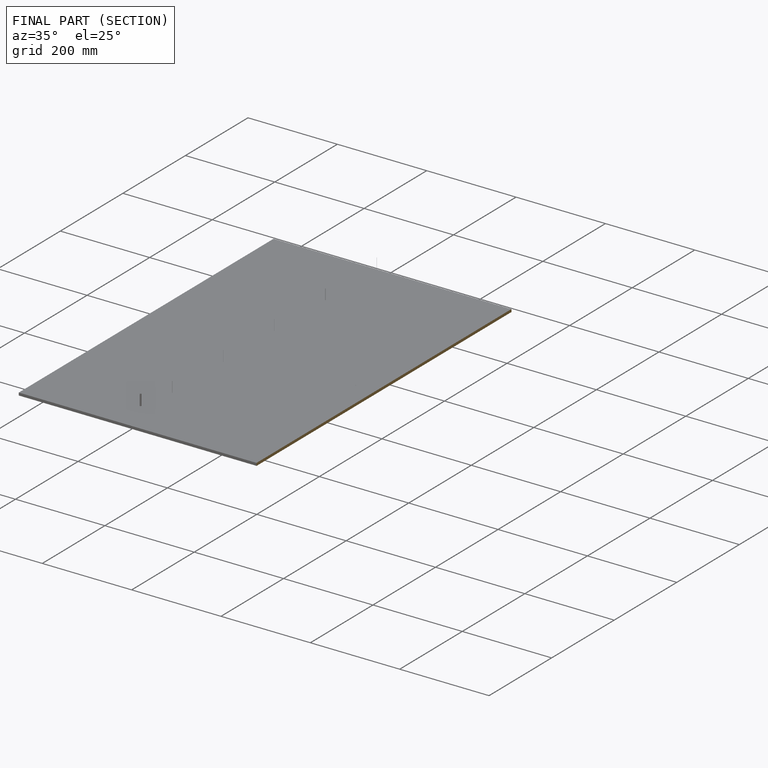
[diagram: finished part — half-section view (interior)]
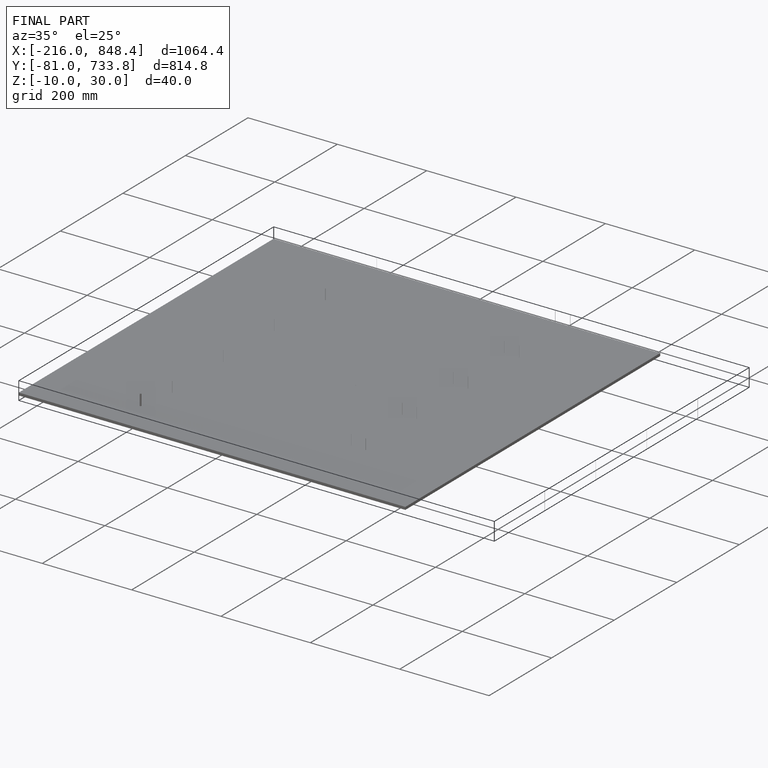
[diagram: finished part — iso view with bounding-box wireframe]
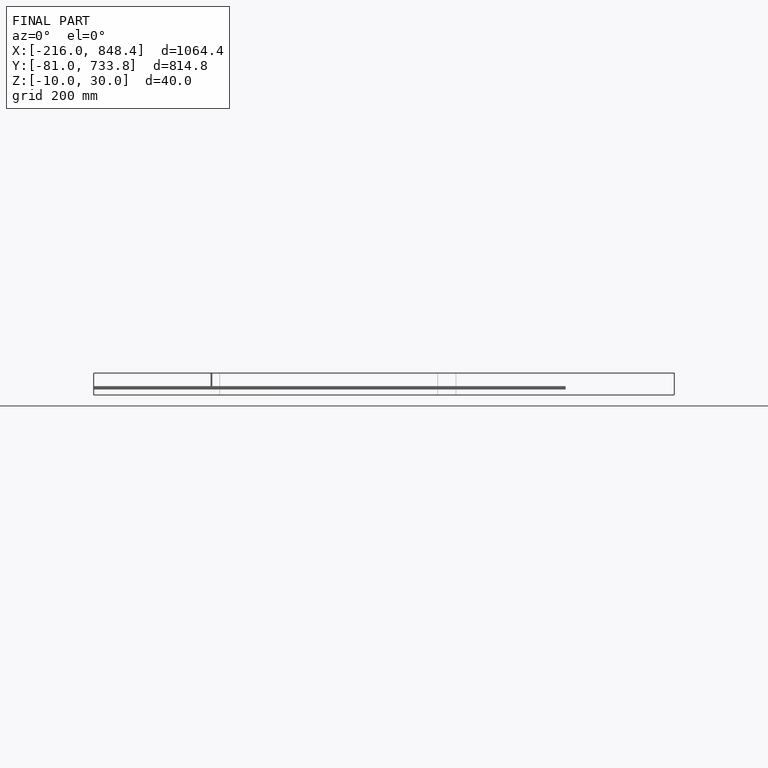
[diagram: finished part — front view with bounding-box wireframe]
